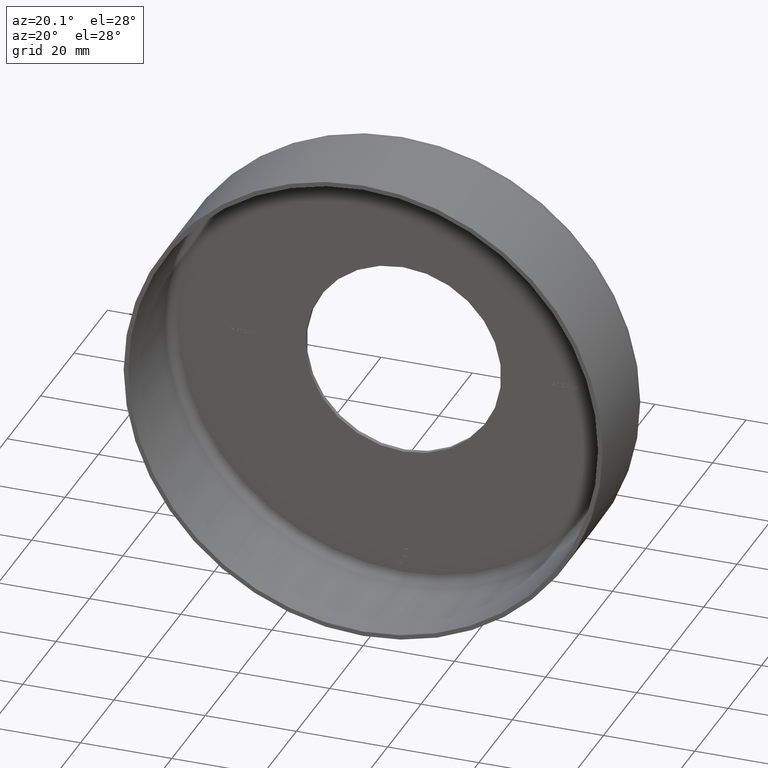
[diagram: clean part render]
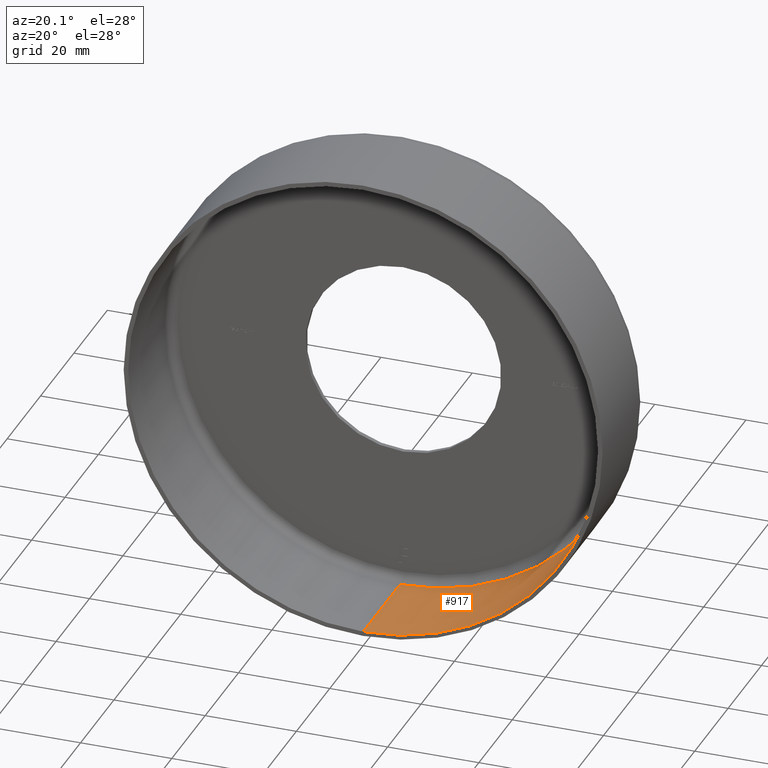
[diagram: same view with one face highlighted and labeled with its STEP entity id]
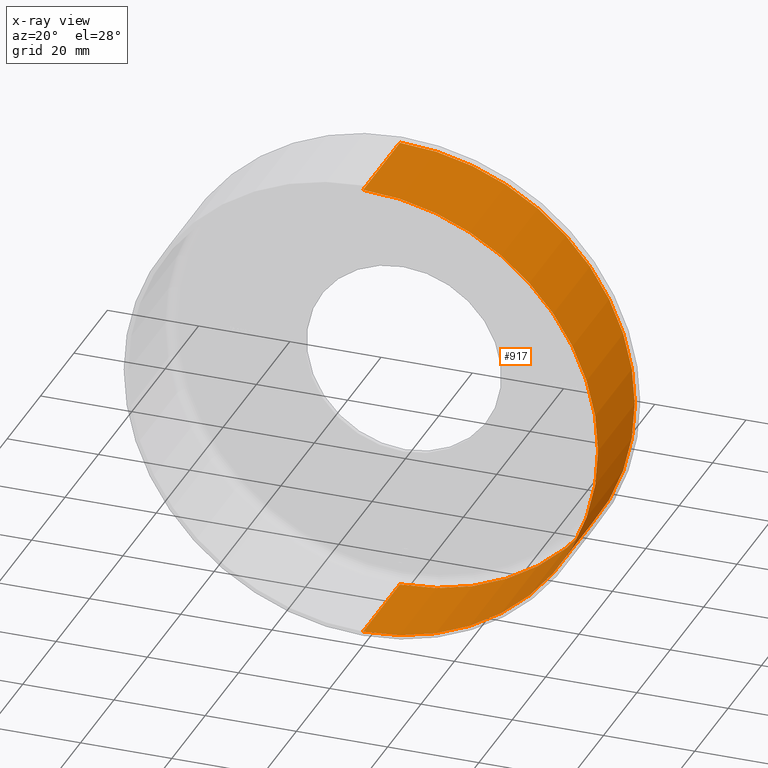
[diagram: x-ray of the same camera — body ghosted, the highlighted face saturated]
A machine part, auxiliary view. The second image highlights one B-rep face of the part: STEP entity #917.
The next image is the same camera in x-ray: the body ghosted, the highlighted face saturated — about 0% of this face is hidden behind the body in this view.
In plain terms, the highlighted cylindrical surface (partial cylindrical patch) has radius 51.5 mm, axis along (-0, -1, -0).
Its self-contained STEP definition (entity closure, byte-faithful):
#791 = EDGE_CURVE ( 'NONE', #8825, #11562, #5684, .T. ) ;
#917 = ADVANCED_FACE ( 'NONE', ( #11137 ), #1424, .F. ) ;
#966 = VERTEX_POINT ( 'NONE', #10664 ) ;
#1025 = EDGE_LOOP ( 'NONE', ( #6608, #9545, #4620, #8731 ) ) ;
#1126 = LINE ( 'NONE', #9509, #6082 ) ;
#1424 = CYLINDRICAL_SURFACE ( 'NONE', #11922, 51.50000000000000711 ) ;
#1620 = AXIS2_PLACEMENT_3D ( 'NONE', #12283, #8942, #2558 ) ;
#1866 = EDGE_CURVE ( 'NONE', #8825, #5919, #7550, .T. ) ;
#2558 = DIRECTION ( 'NONE',  ( 0.000000000000000000, 0.000000000000000000, -1.000000000000000000 ) ) ;
#3215 = CARTESIAN_POINT ( 'NONE',  ( 0.000000000000000000, 0.000000000000000000, 0.000000000000000000 ) ) ;
#3279 = DIRECTION ( 'NONE',  ( -0.000000000000000000, -1.000000000000000000, -0.000000000000000000 ) ) ;
#3610 = CIRCLE ( 'NONE', #6969, 51.50000000000000711 ) ;
#4620 = ORIENTED_EDGE ( 'NONE', *, *, #1866, .T. ) ;
#5684 = CIRCLE ( 'NONE', #1620, 51.50000000000000711 ) ;
#5919 = VERTEX_POINT ( 'NONE', #10516 ) ;
#6082 = VECTOR ( 'NONE', #12826, 1000.000000000000000 ) ;
#6227 = CARTESIAN_POINT ( 'NONE',  ( 0.000000000000000000, 0.000000000000000000, -51.50000000000000711 ) ) ;
#6608 = ORIENTED_EDGE ( 'NONE', *, *, #8167, .F. ) ;
#6871 = VECTOR ( 'NONE', #7371, 1000.000000000000000 ) ;
#6969 = AXIS2_PLACEMENT_3D ( 'NONE', #10893, #3279, #7583 ) ;
#7371 = DIRECTION ( 'NONE',  ( -0.000000000000000000, -1.000000000000000000, -0.000000000000000000 ) ) ;
#7550 = LINE ( 'NONE', #6227, #6871 ) ;
#7583 = DIRECTION ( 'NONE',  ( 0.000000000000000000, 0.000000000000000000, -1.000000000000000000 ) ) ;
#8167 = EDGE_CURVE ( 'NONE', #11562, #966, #1126, .T. ) ;
#8605 = DIRECTION ( 'NONE',  ( 0.000000000000000000, 0.000000000000000000, -1.000000000000000000 ) ) ;
#8731 = ORIENTED_EDGE ( 'NONE', *, *, #12337, .T. ) ;
#8825 = VERTEX_POINT ( 'NONE', #13433 ) ;
#8942 = DIRECTION ( 'NONE',  ( -0.000000000000000000, -1.000000000000000000, -0.000000000000000000 ) ) ;
#9509 = CARTESIAN_POINT ( 'NONE',  ( 6.306931015608869596E-15, 0.000000000000000000, 51.50000000000000711 ) ) ;
#9545 = ORIENTED_EDGE ( 'NONE', *, *, #791, .F. ) ;
#9622 = DIRECTION ( 'NONE',  ( -0.000000000000000000, -1.000000000000000000, -0.000000000000000000 ) ) ;
#10516 = CARTESIAN_POINT ( 'NONE',  ( 0.000000000000000000, -1.224646799147353207E-16, -51.50000000000000711 ) ) ;
#10664 = CARTESIAN_POINT ( 'NONE',  ( 6.306931015608869596E-15, -1.224646799147353207E-16, 51.50000000000000711 ) ) ;
#10893 = CARTESIAN_POINT ( 'NONE',  ( 0.000000000000000000, -1.224646799147353207E-16, 0.000000000000000000 ) ) ;
#11137 = FACE_OUTER_BOUND ( 'NONE', #1025, .T. ) ;
#11562 = VERTEX_POINT ( 'NONE', #12534 ) ;
#11922 = AXIS2_PLACEMENT_3D ( 'NONE', #3215, #9622, #8605 ) ;
#12283 = CARTESIAN_POINT ( 'NONE',  ( 0.000000000000000000, 22.00000000000000355, 0.000000000000000000 ) ) ;
#12337 = EDGE_CURVE ( 'NONE', #5919, #966, #3610, .T. ) ;
#12534 = CARTESIAN_POINT ( 'NONE',  ( 6.306931015608869596E-15, 22.00000000000000355, 51.50000000000000711 ) ) ;
#12826 = DIRECTION ( 'NONE',  ( -0.000000000000000000, -1.000000000000000000, -0.000000000000000000 ) ) ;
#13433 = CARTESIAN_POINT ( 'NONE',  ( 0.000000000000000000, 22.00000000000000355, -51.50000000000000711 ) ) ;